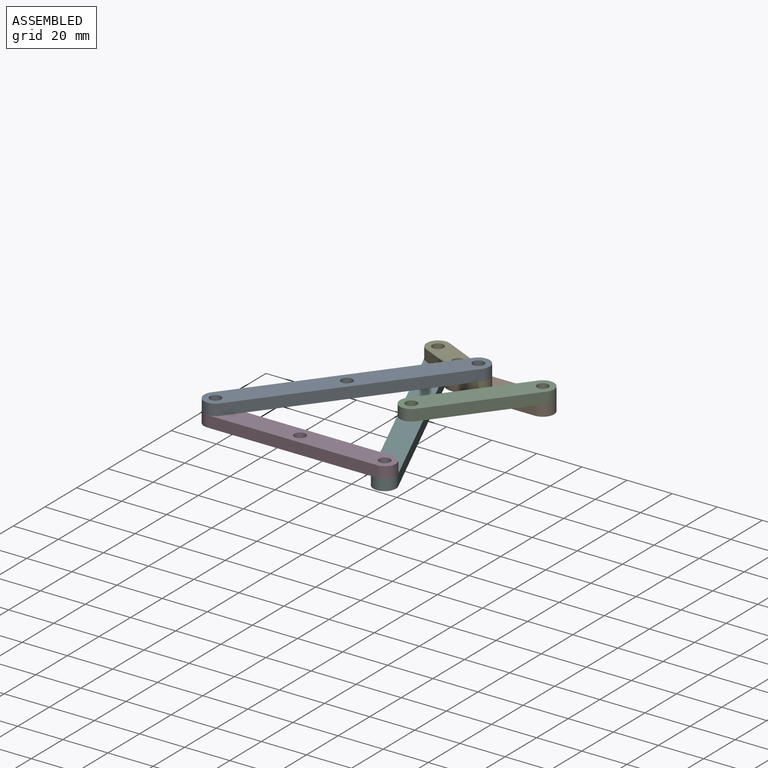
[diagram: assembled view]
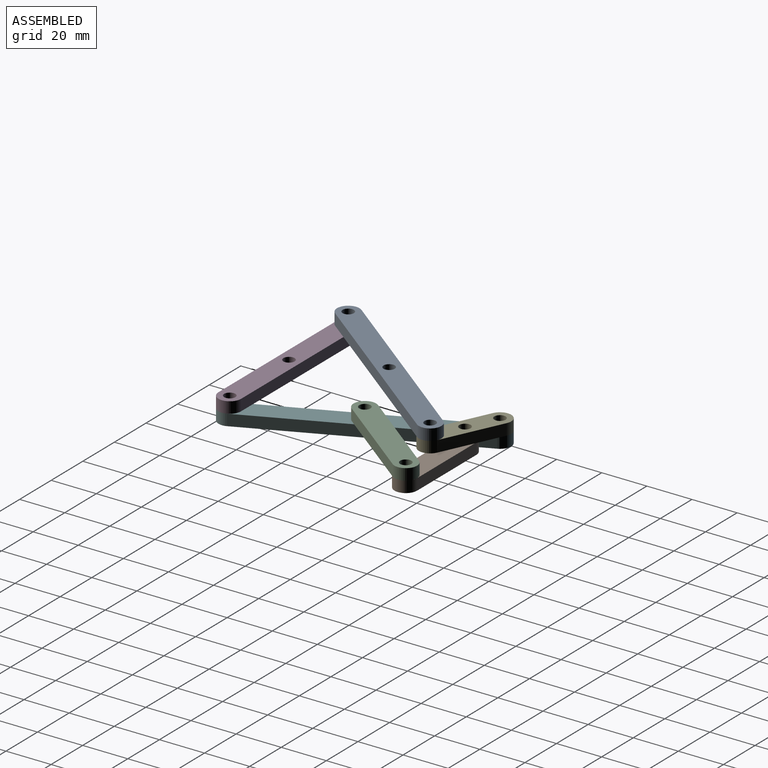
[diagram: assembled view, second angle]
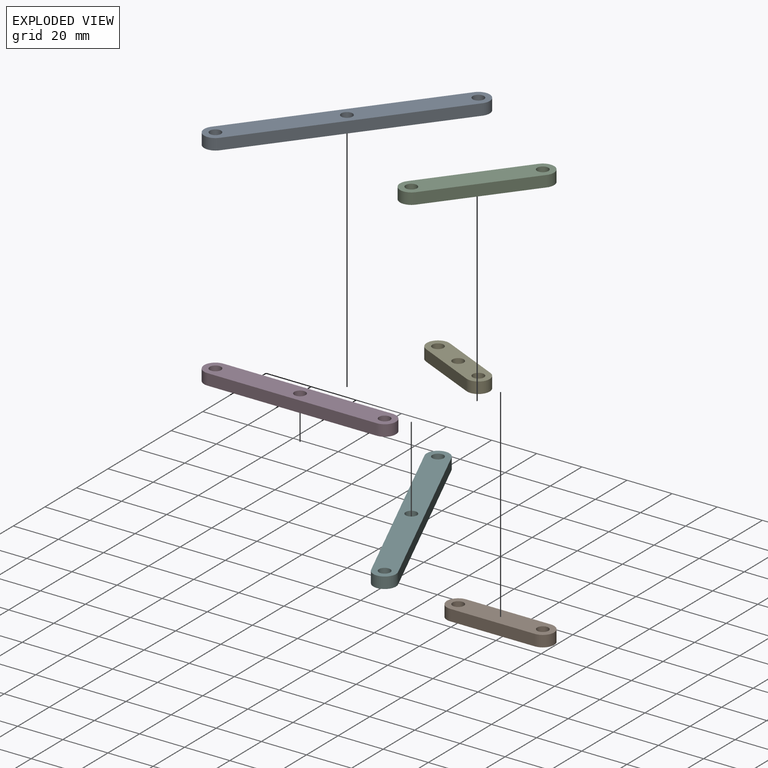
[diagram: exploded view]
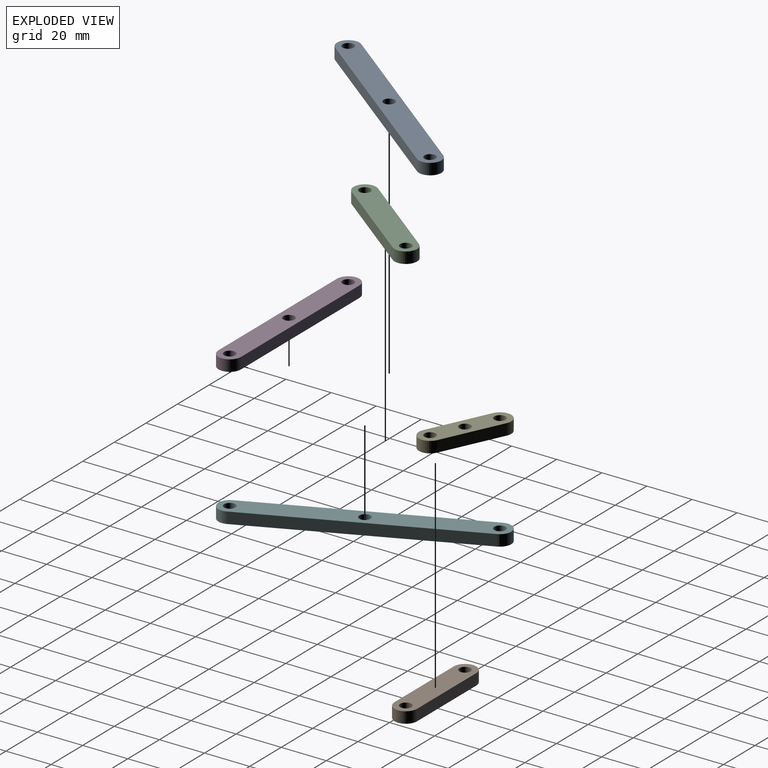
[diagram: exploded view, second angle]
ASSEMBLY  parts=6 mates=7
PART A: 9 faces, bbox 110x10x5 mm
  f0: plane 100x5mm, normal (0,-1,0), area 500mm2, adj f5,f6,f7,f8
  f1: plane 100x5mm, normal (0,1,0), area 500mm2, adj f5,f6,f7,f8
  f2: cylinder r=2.5mm len=5mm, axis (0,0,-1), area 78.5mm2, adj f5,f6
  f3: cylinder r=2.5mm len=5mm, axis (0,0,-1), area 78.5mm2, adj f5,f6
  f4: cylinder r=2.5mm len=5mm, axis (0,0,-1), area 78.5mm2, adj f5,f6
  f5: plane 110x10mm, normal (0,0,1), area 1019.6mm2, adj f0,f1,f2,f3,f4,f7,f8
  f6: plane 110x10mm, normal (0,0,-1), area 1019.6mm2, adj f0,f1,f2,f3,f4,f7,f8
  f7: cylinder r=5mm len=10mm, axis (0,0,-1), area 78.5mm2, adj f0,f1,f5,f6
  f8: cylinder r=5mm len=10mm, axis (0,0,-1), area 78.5mm2, adj f0,f1,f5,f6
PART B: 8 faces, bbox 47.5x10x5 mm
  f0: plane 37.5x5mm, normal (0,-1,0), area 187.5mm2, adj f4,f5,f6,f7
  f1: plane 37.5x5mm, normal (0,1,0), area 187.5mm2, adj f4,f5,f6,f7
  f2: cylinder r=2.5mm len=5mm, axis (0,0,-1), area 78.5mm2, adj f4,f5
  f3: cylinder r=2.5mm len=5mm, axis (0,0,-1), area 78.5mm2, adj f4,f5
  f4: plane 47.5x10mm, normal (0,0,1), area 414.3mm2, adj f0,f1,f2,f3,f6,f7
  f5: plane 47.5x10mm, normal (0,0,-1), area 414.3mm2, adj f0,f1,f2,f3,f6,f7
  f6: cylinder r=5mm len=10mm, axis (0,0,-1), area 78.5mm2, adj f0,f1,f4,f5
  f7: cylinder r=5mm len=10mm, axis (0,0,-1), area 78.5mm2, adj f0,f1,f4,f5
PART C: 8 faces, bbox 60x10x5 mm
  f0: plane 50x5mm, normal (0,1,0), area 250mm2, adj f4,f5,f6,f7
  f1: cylinder r=2.5mm len=5mm, axis (0,0,-1), area 78.5mm2, adj f4,f5
  f2: plane 50x5mm, normal (0,-1,0), area 250mm2, adj f4,f5,f6,f7
  f3: cylinder r=2.5mm len=5mm, axis (0,0,-1), area 78.5mm2, adj f4,f5
  f4: plane 60x10mm, normal (0,0,1), area 539.3mm2, adj f0,f1,f2,f3,f6,f7
  f5: plane 60x10mm, normal (0,0,-1), area 539.3mm2, adj f0,f1,f2,f3,f6,f7
  f6: cylinder r=5mm len=10mm, axis (0,0,-1), area 78.5mm2, adj f0,f2,f4,f5
  f7: cylinder r=5mm len=10mm, axis (0,0,1), area 78.5mm2, adj f0,f2,f4,f5
PART D: 9 faces, bbox 85x10x5 mm
  f0: plane 75x5mm, normal (0,-1,0), area 375mm2, adj f4,f5,f6,f7
  f1: plane 75x5mm, normal (0,1,0), area 375mm2, adj f4,f5,f6,f7
  f2: cylinder r=2.5mm len=5mm, axis (0,0,-1), area 78.5mm2, adj f4,f5
  f3: cylinder r=2.5mm len=5mm, axis (0,0,-1), area 78.5mm2, adj f4,f5
  f4: plane 85x10mm, normal (0,0,1), area 769.6mm2, adj f0,f1,f2,f3,f6,f7,f8
  f5: plane 85x10mm, normal (0,0,-1), area 769.6mm2, adj f0,f1,f2,f3,f6,f7,f8
  f6: cylinder r=5mm len=10mm, axis (0,0,-1), area 78.5mm2, adj f0,f1,f4,f5
  f7: cylinder r=5mm len=10mm, axis (0,0,-1), area 78.5mm2, adj f0,f1,f4,f5
  f8: cylinder r=2.5mm len=5mm, axis (0,0,-1), area 78.5mm2, adj f4,f5
PART E: 9 faces, bbox 39.3x10x5 mm
  f0: plane 29.29x5mm, normal (0,-1,0), area 146.4mm2, adj f4,f5,f6,f7
  f1: plane 29.29x5mm, normal (0,1,0), area 146.4mm2, adj f4,f5,f6,f7
  f2: cylinder r=2.5mm len=5mm, axis (0,0,-1), area 78.5mm2, adj f4,f5
  f3: cylinder r=2.5mm len=5mm, axis (0,0,-1), area 78.5mm2, adj f4,f5
  f4: plane 39.29x10mm, normal (0,0,1), area 312.5mm2, adj f0,f1,f2,f3,f6,f7,f8
  f5: plane 39.29x10mm, normal (0,0,-1), area 312.5mm2, adj f0,f1,f2,f3,f6,f7,f8
  f6: cylinder r=5mm len=10mm, axis (0,0,-1), area 78.5mm2, adj f0,f1,f4,f5
  f7: cylinder r=5mm len=10mm, axis (0,0,-1), area 78.5mm2, adj f0,f1,f4,f5
  f8: cylinder r=2.5mm len=5mm, axis (0,0,-1), area 78.5mm2, adj f4,f5
PART F: same geometry as A
PLACE A rot(axis=(0,0,1),52.3deg) t=(-37.71,39.46,5)mm
PLACE B t=(-1.66,85.19,-5)mm fixed
PLACE C rot(axis=(0,0,1),52.3deg) t=(1.8,65.42,0)mm
PLACE D t=(-30.79,-0.1,0)mm
PLACE E rot(axis=(0,0,-1),25deg) t=(-20.41,85.19,0)mm
PLACE F rot(axis=(0,0,-1),66.2deg) t=(-13.48,45.64,-5)mm
MATE revolute E.f3 <-> A.f4  axis (0,0,1) through (-7.13,79.02,5)mm
MATE revolute F.f4 <-> D.f3  axis (0,0,1) through (6.71,-0.1,0)mm
MATE revolute A.f2 <-> D.f2  axis (0,0,-1) through (-68.29,-0.1,5)mm
MATE revolute C.f1 <-> F.f3  axis (0,0,-1) through (-13.48,45.64,0)mm
MATE revolute B.f2 <-> E.f8  axis (0,0,1) through (-20.41,85.19,0)mm
MATE revolute B.f3 <-> C.f3  axis (0,0,1) through (17.09,85.19,0)mm
MATE revolute E.f2 <-> F.f2  axis (0,0,-1) through (-33.68,91.37,0)mm
